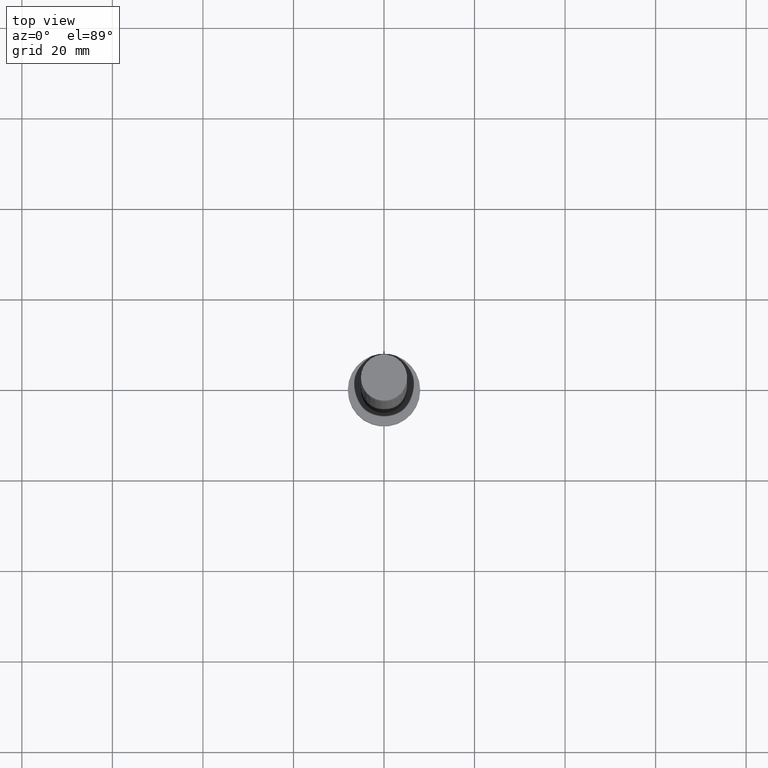
[diagram: clean part render]
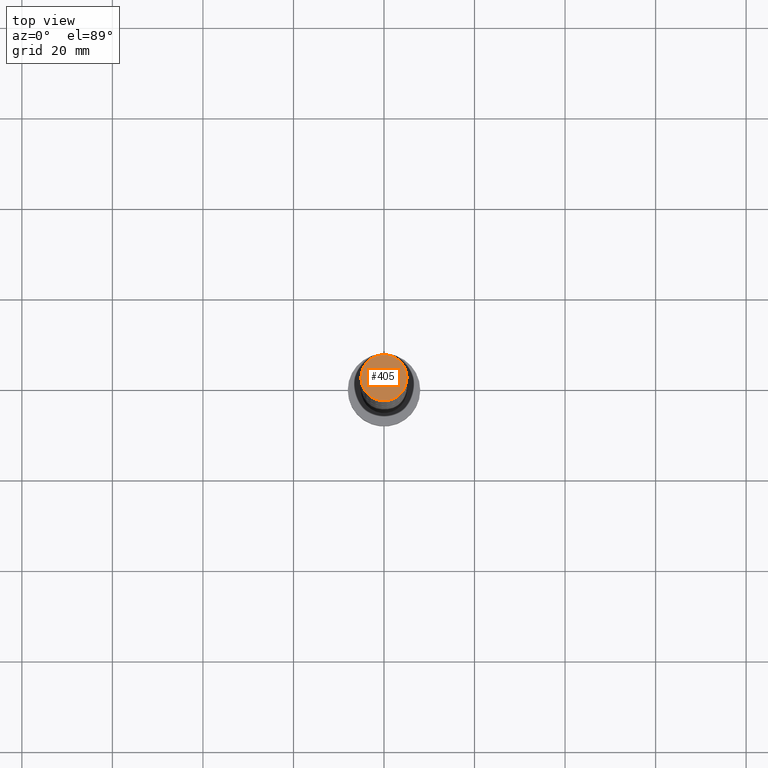
[diagram: same view with one face highlighted and labeled with its STEP entity id]
A machine part, top view. The second image highlights one B-rep face of the part: STEP entity #405.
In plain terms, the highlighted planar face has unit normal (0, 0, 1).
Its self-contained STEP definition (entity closure, byte-faithful):
#87 = DIRECTION ( 'NONE',  ( 1.000000000000000000, 0.000000000000000000, 0.000000000000000000 ) ) ;
#142 = FACE_OUTER_BOUND ( 'NONE', #1515, .T. ) ;
#380 = AXIS2_PLACEMENT_3D ( 'NONE', #1409, #1416, #1278 ) ;
#405 = ADVANCED_FACE ( 'NONE', ( #142 ), #651, .T. ) ;
#651 = PLANE ( 'NONE',  #380 ) ;
#653 = VERTEX_POINT ( 'NONE', #1476 ) ;
#658 = DIRECTION ( 'NONE',  ( 0.000000000000000000, 0.000000000000000000, 1.000000000000000000 ) ) ;
#709 = ORIENTED_EDGE ( 'NONE', *, *, #790, .T. ) ;
#717 = DIRECTION ( 'NONE',  ( 0.000000000000000000, 0.000000000000000000, 1.000000000000000000 ) ) ;
#784 = AXIS2_PLACEMENT_3D ( 'NONE', #1469, #717, #87 ) ;
#790 = EDGE_CURVE ( 'NONE', #1328, #653, #940, .T. ) ;
#822 = DIRECTION ( 'NONE',  ( 1.000000000000000000, 0.000000000000000000, 0.000000000000000000 ) ) ;
#853 = ORIENTED_EDGE ( 'NONE', *, *, #1543, .T. ) ;
#940 = CIRCLE ( 'NONE', #784, 5.100000000000001421 ) ;
#1278 = DIRECTION ( 'NONE',  ( 1.000000000000000000, 0.000000000000000000, -0.000000000000000000 ) ) ;
#1313 = CARTESIAN_POINT ( 'NONE',  ( 0.000000000000000000, 0.000000000000000000, 160.0000000000000000 ) ) ;
#1328 = VERTEX_POINT ( 'NONE', #1654 ) ;
#1352 = CIRCLE ( 'NONE', #1656, 5.100000000000001421 ) ;
#1409 = CARTESIAN_POINT ( 'NONE',  ( 0.000000000000000000, 0.000000000000000000, 160.0000000000000000 ) ) ;
#1416 = DIRECTION ( 'NONE',  ( 0.000000000000000000, 0.000000000000000000, 1.000000000000000000 ) ) ;
#1469 = CARTESIAN_POINT ( 'NONE',  ( 0.000000000000000000, 0.000000000000000000, 160.0000000000000000 ) ) ;
#1476 = CARTESIAN_POINT ( 'NONE',  ( 5.100000000000001421, 6.245698675651502811E-16, 160.0000000000000000 ) ) ;
#1515 = EDGE_LOOP ( 'NONE', ( #709, #853 ) ) ;
#1543 = EDGE_CURVE ( 'NONE', #653, #1328, #1352, .T. ) ;
#1654 = CARTESIAN_POINT ( 'NONE',  ( -5.100000000000001421, 0.000000000000000000, 160.0000000000000000 ) ) ;
#1656 = AXIS2_PLACEMENT_3D ( 'NONE', #1313, #658, #822 ) ;